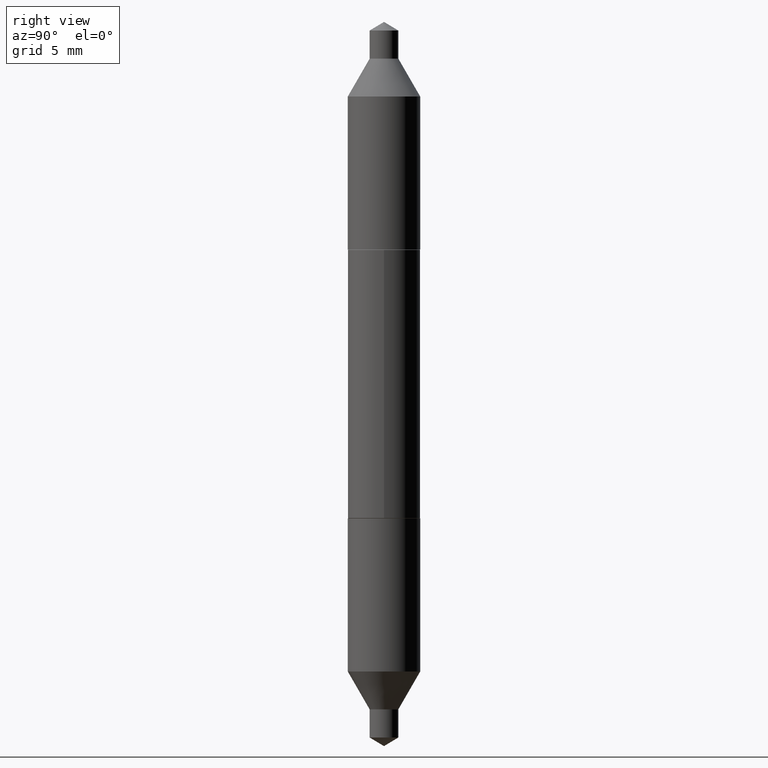
[diagram: clean part render]
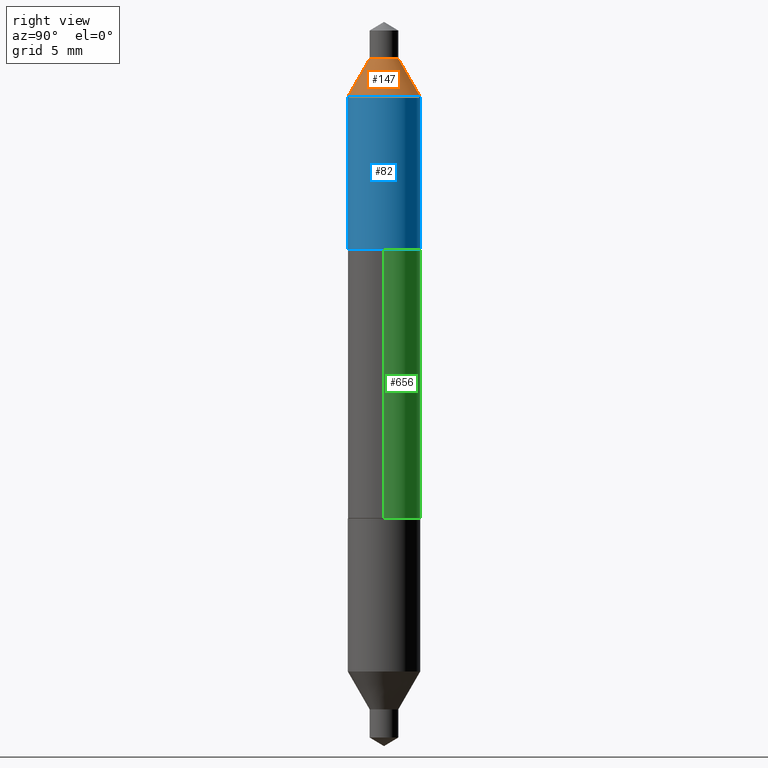
[diagram: same view with three faces highlighted in distinct colors, each labeled with its STEP entity id]
A machine part, right view with three faces highlighted in distinct colors.
Their STEP definitions:

[orange] entity #147 — the highlighted conical surface has half-angle 30 deg.
#2 = DIRECTION ( 'NONE',  ( -2.416963263212490311E-29, 3.532302898814723965E-15, 1.000000000000000000 ) ) ;
#21 = FACE_OUTER_BOUND ( 'NONE', #614, .T. ) ;
#45 = CIRCLE ( 'NONE', #104, 0.06200000000000000649 ) ;
#98 = CARTESIAN_POINT ( 'NONE',  ( -1.352804812493065762E-29, 1.958103755846338219E-15, 0.5569999999999999396 ) ) ;
#104 = AXIS2_PLACEMENT_3D ( 'NONE', #371, #2, #272 ) ;
#114 = CARTESIAN_POINT ( 'NONE',  ( -4.329436860165604459E-16, -0.06199999999999827177, 0.4922212997969231396 ) ) ;
#147 = ADVANCED_FACE ( 'NONE', ( #21 ), #422, .T. ) ;
#152 = VECTOR ( 'NONE', #185, 39.37007874015748143 ) ;
#158 = DIRECTION ( 'NONE',  ( -6.982962677686265922E-15, -1.000000000000000000, 2.776268286244171659E-15 ) ) ;
#185 = DIRECTION ( 'NONE',  ( -3.491481338843073402E-15, -0.4999999999999974465, -0.8660254037844400399 ) ) ;
#228 = CARTESIAN_POINT ( 'NONE',  ( -1.352804812493065762E-29, 1.958103755846338219E-15, 0.5569999999999999396 ) ) ;
#272 = DIRECTION ( 'NONE',  ( -6.982962677686265922E-15, -1.000000000000000000, 3.304654831045479413E-15 ) ) ;
#301 = ORIENTED_EDGE ( 'NONE', *, *, #451, .T. ) ;
#327 = CARTESIAN_POINT ( 'NONE',  ( 4.253508758618293946E-16, 0.06200000000000174122, 0.4922212997969227510 ) ) ;
#346 = VECTOR ( 'NONE', #477, 39.37007874015748854 ) ;
#351 = ORIENTED_EDGE ( 'NONE', *, *, #664, .T. ) ;
#363 = ORIENTED_EDGE ( 'NONE', *, *, #479, .F. ) ;
#364 = CARTESIAN_POINT ( 'NONE',  ( 1.687682507451654546E-16, 0.02460000000000194670, 0.5569999999999999396 ) ) ;
#370 = ORIENTED_EDGE ( 'NONE', *, *, #424, .F. ) ;
#371 = CARTESIAN_POINT ( 'NONE',  ( -1.196237073863572951E-29, 1.729285765337559218E-15, 0.4922212997969229731 ) ) ;
#383 = VERTEX_POINT ( 'NONE', #364 ) ;
#386 = VERTEX_POINT ( 'NONE', #421 ) ;
#393 = DIRECTION ( 'NONE',  ( -6.982962677686265922E-15, -1.000000000000000000, 2.776268286244171659E-15 ) ) ;
#421 = CARTESIAN_POINT ( 'NONE',  ( -1.717808818710955741E-16, -0.02459999999999802969, 0.5570000000000000506 ) ) ;
#422 = CONICAL_SURFACE ( 'NONE', #600, 0.02459999999999998646, 0.5235987755982924874 ) ;
#424 = EDGE_CURVE ( 'NONE', #386, #383, #601, .T. ) ;
#432 = DIRECTION ( 'NONE',  ( -2.416963263212490311E-29, 3.532302898814723965E-15, 1.000000000000000000 ) ) ;
#439 = LINE ( 'NONE', #535, #346 ) ;
#444 = AXIS2_PLACEMENT_3D ( 'NONE', #98, #432, #158 ) ;
#448 = VERTEX_POINT ( 'NONE', #327 ) ;
#451 = EDGE_CURVE ( 'NONE', #551, #448, #45, .T. ) ;
#455 = LINE ( 'NONE', #666, #152 ) ;
#477 = DIRECTION ( 'NONE',  ( 3.430248998885747243E-15, 0.4999999999999913403, -0.8660254037844434816 ) ) ;
#479 = EDGE_CURVE ( 'NONE', #383, #448, #439, .T. ) ;
#535 = CARTESIAN_POINT ( 'NONE',  ( 1.687682507451660463E-16, 0.02460000000000194670, 0.5569999999999999396 ) ) ;
#551 = VERTEX_POINT ( 'NONE', #114 ) ;
#600 = AXIS2_PLACEMENT_3D ( 'NONE', #228, #655, #393 ) ;
#601 = CIRCLE ( 'NONE', #444, 0.02459999999999998646 ) ;
#614 = EDGE_LOOP ( 'NONE', ( #363, #370, #351, #301 ) ) ;
#655 = DIRECTION ( 'NONE',  ( 2.416963263212490311E-29, -3.532302898814723965E-15, -1.000000000000000000 ) ) ;
#664 = EDGE_CURVE ( 'NONE', #386, #551, #455, .T. ) ;
#666 = CARTESIAN_POINT ( 'NONE',  ( -1.717808818710955741E-16, -0.02459999999999802969, 0.5570000000000000506 ) ) ;

[blue] entity #82 — the highlighted cylindrical surface (edge-blend (fillet) strip) has radius 1.5748 mm, axis along (0, -0, -1).
#2 = DIRECTION ( 'NONE',  ( -2.416963263212490311E-29, 3.532302898814723965E-15, 1.000000000000000000 ) ) ;
#17 = DIRECTION ( 'NONE',  ( 2.416963263212490591E-29, -3.532302898814723965E-15, -1.000000000000000000 ) ) ;
#22 = LINE ( 'NONE', #564, #218 ) ;
#45 = CIRCLE ( 'NONE', #104, 0.06200000000000000649 ) ;
#59 = DIRECTION ( 'NONE',  ( 2.416963263212490591E-29, -3.532302898814723965E-15, -1.000000000000000000 ) ) ;
#72 = VECTOR ( 'NONE', #17, 39.37007874015748143 ) ;
#82 = ADVANCED_FACE ( 'NONE', ( #407 ), #462, .T. ) ;
#93 = DIRECTION ( 'NONE',  ( -6.982962677686265922E-15, -1.000000000000000000, 3.304654831045479808E-15 ) ) ;
#96 = CARTESIAN_POINT ( 'NONE',  ( -4.329436860165540857E-16, -0.06199999999999919464, 0.2300000000000001488 ) ) ;
#104 = AXIS2_PLACEMENT_3D ( 'NONE', #371, #2, #272 ) ;
#112 = EDGE_LOOP ( 'NONE', ( #570, #387, #159, #691 ) ) ;
#114 = CARTESIAN_POINT ( 'NONE',  ( -4.329436860165604459E-16, -0.06199999999999827177, 0.4922212997969231396 ) ) ;
#128 = DIRECTION ( 'NONE',  ( -6.982962677686265922E-15, -1.000000000000000000, 3.304654831045479808E-15 ) ) ;
#132 = LINE ( 'NONE', #662, #72 ) ;
#159 = ORIENTED_EDGE ( 'NONE', *, *, #567, .T. ) ;
#174 = AXIS2_PLACEMENT_3D ( 'NONE', #497, #398, #128 ) ;
#218 = VECTOR ( 'NONE', #59, 39.37007874015748143 ) ;
#230 = VERTEX_POINT ( 'NONE', #410 ) ;
#249 = CARTESIAN_POINT ( 'NONE',  ( -5.624578254225812687E-30, 8.030407079339232947E-16, 0.2299999999999999267 ) ) ;
#272 = DIRECTION ( 'NONE',  ( -6.982962677686265922E-15, -1.000000000000000000, 3.304654831045479413E-15 ) ) ;
#313 = AXIS2_PLACEMENT_3D ( 'NONE', #249, #625, #93 ) ;
#327 = CARTESIAN_POINT ( 'NONE',  ( 4.253508758618293946E-16, 0.06200000000000174122, 0.4922212997969227510 ) ) ;
#340 = VERTEX_POINT ( 'NONE', #96 ) ;
#371 = CARTESIAN_POINT ( 'NONE',  ( -1.196237073863572951E-29, 1.729285765337559218E-15, 0.4922212997969229731 ) ) ;
#387 = ORIENTED_EDGE ( 'NONE', *, *, #451, .F. ) ;
#398 = DIRECTION ( 'NONE',  ( 2.416963263212490311E-29, -3.532302898814723965E-15, -1.000000000000000000 ) ) ;
#407 = FACE_OUTER_BOUND ( 'NONE', #112, .T. ) ;
#410 = CARTESIAN_POINT ( 'NONE',  ( 4.253508758618261406E-16, 0.06200000000000079753, 0.2299999999999997324 ) ) ;
#448 = VERTEX_POINT ( 'NONE', #327 ) ;
#451 = EDGE_CURVE ( 'NONE', #551, #448, #45, .T. ) ;
#462 = CYLINDRICAL_SURFACE ( 'NONE', #174, 0.06199999999999999956 ) ;
#497 = CARTESIAN_POINT ( 'NONE',  ( -5.624578254225812687E-30, 8.030407079339232947E-16, 0.2299999999999999267 ) ) ;
#551 = VERTEX_POINT ( 'NONE', #114 ) ;
#564 = CARTESIAN_POINT ( 'NONE',  ( 4.253508758618292960E-16, 0.06200000000000079753, 0.2299999999999997324 ) ) ;
#567 = EDGE_CURVE ( 'NONE', #551, #340, #132, .T. ) ;
#570 = ORIENTED_EDGE ( 'NONE', *, *, #579, .F. ) ;
#579 = EDGE_CURVE ( 'NONE', #448, #230, #22, .T. ) ;
#592 = CIRCLE ( 'NONE', #313, 0.06199999999999999956 ) ;
#625 = DIRECTION ( 'NONE',  ( -2.416963263212490311E-29, 3.532302898814723965E-15, 1.000000000000000000 ) ) ;
#662 = CARTESIAN_POINT ( 'NONE',  ( -4.329436860165540857E-16, -0.06199999999999919464, 0.2300000000000001488 ) ) ;
#683 = EDGE_CURVE ( 'NONE', #340, #230, #592, .T. ) ;
#691 = ORIENTED_EDGE ( 'NONE', *, *, #683, .T. ) ;

[green] entity #656 — the highlighted cylindrical surface (edge-blend (fillet) strip) has radius 1.5748 mm, axis along (-0, 0, 1).
#4 = DIRECTION ( 'NONE',  ( 1.000000000000000000, -6.982962677686267499E-15, 0.000000000000000000 ) ) ;
#37 = CARTESIAN_POINT ( 'NONE',  ( -0.06200000000000002037, -3.607584710932394325E-16, -0.2294999999999999263 ) ) ;
#66 = FACE_OUTER_BOUND ( 'NONE', #111, .T. ) ;
#69 = VERTEX_POINT ( 'NONE', #138 ) ;
#77 = CARTESIAN_POINT ( 'NONE',  ( -5.612350910194886774E-30, 8.012949672645016925E-16, 0.2294999999999999263 ) ) ;
#100 = CARTESIAN_POINT ( 'NONE',  ( 0.06200000000000002037, -1.234238653281050355E-15, -0.2294999999999999263 ) ) ;
#111 = EDGE_LOOP ( 'NONE', ( #165, #213, #217, #181 ) ) ;
#126 = DIRECTION ( 'NONE',  ( 1.000000000000000000, -6.982962677686265922E-15, 0.000000000000000000 ) ) ;
#138 = CARTESIAN_POINT ( 'NONE',  ( 0.06200000000000002037, 3.683512812479530302E-16, 0.2294999999999999263 ) ) ;
#143 = VECTOR ( 'NONE', #547, 39.37007874015748143 ) ;
#150 = AXIS2_PLACEMENT_3D ( 'NONE', #238, #658, #126 ) ;
#165 = ORIENTED_EDGE ( 'NONE', *, *, #585, .T. ) ;
#173 = EDGE_CURVE ( 'NONE', #240, #652, #295, .T. ) ;
#181 = ORIENTED_EDGE ( 'NONE', *, *, #574, .F. ) ;
#182 = DIRECTION ( 'NONE',  ( 1.000000000000000000, -6.982962677686266711E-15, 4.876176775795935232E-29 ) ) ;
#200 = AXIS2_PLACEMENT_3D ( 'NONE', #450, #236, #182 ) ;
#213 = ORIENTED_EDGE ( 'NONE', *, *, #173, .T. ) ;
#217 = ORIENTED_EDGE ( 'NONE', *, *, #615, .F. ) ;
#236 = DIRECTION ( 'NONE',  ( -2.445468806185136597E-29, 3.491481338843145583E-15, 1.000000000000000000 ) ) ;
#238 = CARTESIAN_POINT ( 'NONE',  ( 5.612350910194886774E-30, -8.012949672645016925E-16, -0.2294999999999999263 ) ) ;
#240 = VERTEX_POINT ( 'NONE', #37 ) ;
#288 = CYLINDRICAL_SURFACE ( 'NONE', #200, 0.06199999999999999956 ) ;
#291 = DIRECTION ( 'NONE',  ( -2.445468806185136877E-29, 3.491481338843145188E-15, 1.000000000000000000 ) ) ;
#295 = LINE ( 'NONE', #553, #630 ) ;
#297 = CARTESIAN_POINT ( 'NONE',  ( 0.06199999999999999956, -4.329436860165485144E-16, 3.023229600993479967E-30 ) ) ;
#450 = CARTESIAN_POINT ( 'NONE',  ( 0.000000000000000000, 0.000000000000000000, 0.000000000000000000 ) ) ;
#457 = AXIS2_PLACEMENT_3D ( 'NONE', #77, #496, #4 ) ;
#496 = DIRECTION ( 'NONE',  ( -2.445468806185136597E-29, 3.491481338843145583E-15, 1.000000000000000000 ) ) ;
#500 = VERTEX_POINT ( 'NONE', #100 ) ;
#514 = LINE ( 'NONE', #297, #143 ) ;
#547 = DIRECTION ( 'NONE',  ( -2.445468806185136877E-29, 3.491481338843145188E-15, 1.000000000000000000 ) ) ;
#553 = CARTESIAN_POINT ( 'NONE',  ( -0.06199999999999999956, 4.405364961712621121E-16, -3.049739755958041223E-30 ) ) ;
#574 = EDGE_CURVE ( 'NONE', #500, #69, #514, .T. ) ;
#583 = CIRCLE ( 'NONE', #150, 0.06200000000000002037 ) ;
#585 = EDGE_CURVE ( 'NONE', #500, #240, #583, .T. ) ;
#605 = CARTESIAN_POINT ( 'NONE',  ( -0.06200000000000002037, 4.405364961712619149E-16, 0.2294999999999999263 ) ) ;
#615 = EDGE_CURVE ( 'NONE', #69, #652, #668, .T. ) ;
#630 = VECTOR ( 'NONE', #291, 39.37007874015748143 ) ;
#652 = VERTEX_POINT ( 'NONE', #605 ) ;
#656 = ADVANCED_FACE ( 'NONE', ( #66 ), #288, .T. ) ;
#658 = DIRECTION ( 'NONE',  ( -2.445468806185136597E-29, 3.491481338843145583E-15, 1.000000000000000000 ) ) ;
#668 = CIRCLE ( 'NONE', #457, 0.06200000000000002037 ) ;